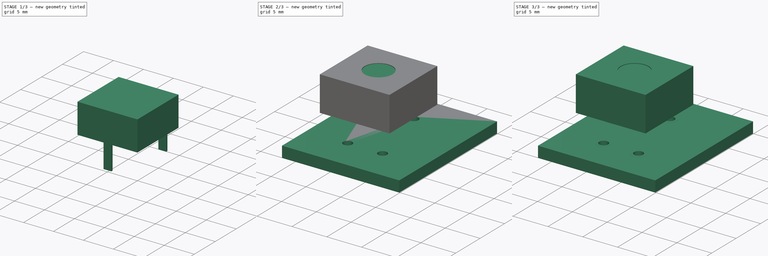
[diagram: build sequence overview — one tinted view per stage of 3, left to right]
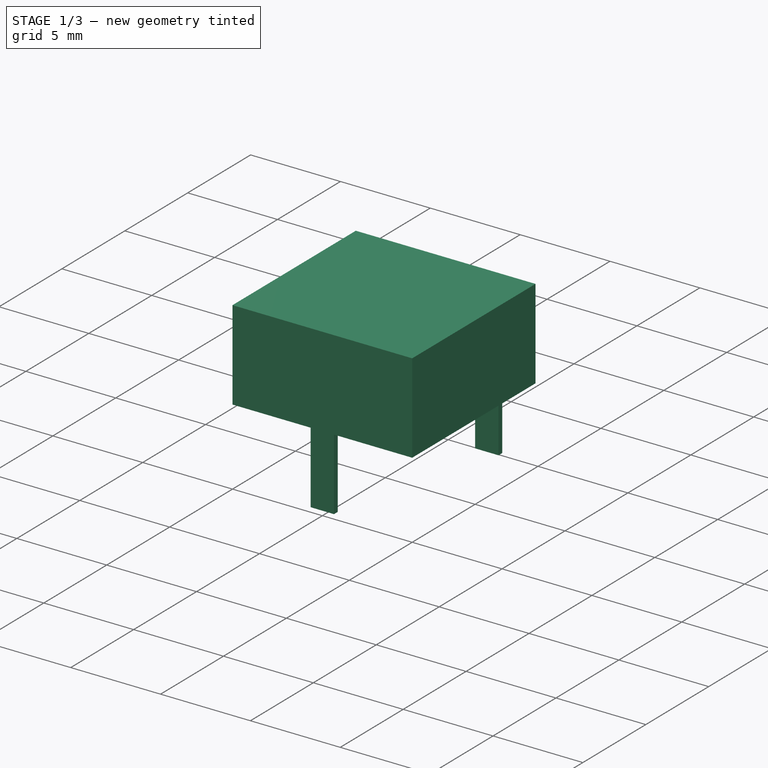
[diagram: stage 1 of 3 — iso view after this stage's code; geometry added in this stage tinted green]
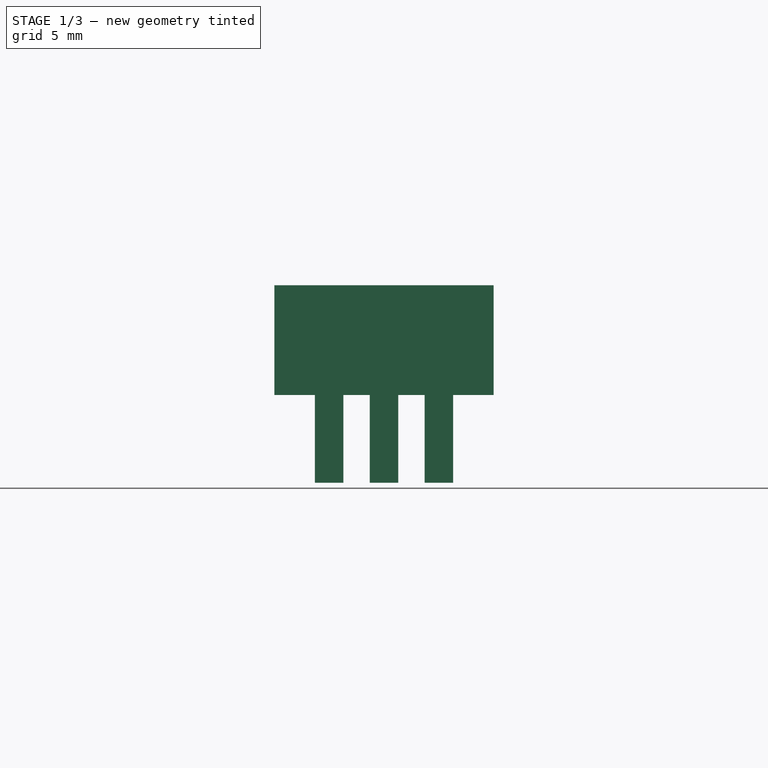
[diagram: stage 1 of 3 — front view after this stage's code; geometry added in this stage tinted green]
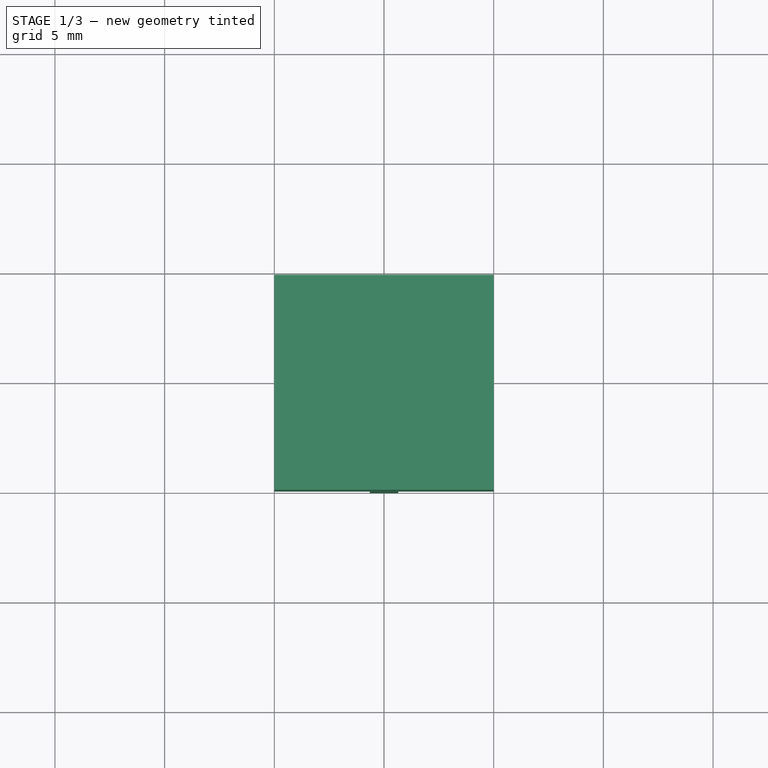
[diagram: stage 1 of 3 — top view after this stage's code; geometry added in this stage tinted green]
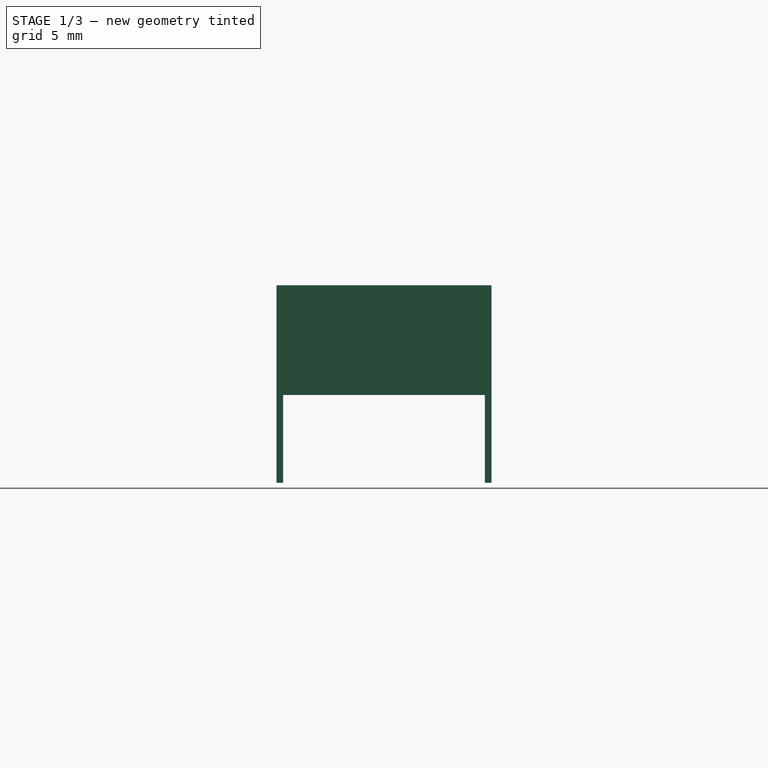
[diagram: stage 1 of 3 — right view after this stage's code; geometry added in this stage tinted green]
FCSTD DOCUMENT  (FreeCAD 0.19R22665 (Git))
Label: trimmer_acp470
License: All rights reserved
LicenseURL: http://en.wikipedia.org/wiki/All_rights_reserved
objects: Part::FeaturePython×6, Sketcher::SketchObject×4, PartDesign::Pad×2, PartDesign::Pocket×1, App::DocumentObjectGroup×1, PartDesign::Body×1, App::Part×1, Part::Feature×1
note: 18 computed .brp shape members not serialized (recipe doc carries the construction recipe); baked Part::Feature solids carry a one-line shape summary decoded from their .brp

FEATURE [Sketcher::SketchObject] Sketch
  MapMode = 5
  Support = -> [XY_Plane001]
  sketch-geometry (4):
    g0: LineSegment StartX=-10 StartY=9.8 StartZ=0 EndX=0 EndY=9.8 EndZ=0
    g1: LineSegment StartX=0 StartY=9.8 StartZ=0 EndX=0 EndY=0 EndZ=0
    g2: LineSegment StartX=0 StartY=0 StartZ=0 EndX=-10 EndY=0 EndZ=0
    g3: LineSegment StartX=-10 StartY=0 StartZ=0 EndX=-10 EndY=9.8 EndZ=0
  constraints (11):
    c: Coincident(g0,g1)
    c: Coincident(g1,g2)
    c: Coincident(g2,g3)
    c: Coincident(g3,g0)
    c: Horizontal(g0)
    c: Horizontal(g2)
    c: Vertical(g1)
    c: Vertical(g3)
    c: Coincident(g1,g-1)
    c: Distance(g0) = 10
    c: Distance(g3) = 9.8
FEATURE [PartDesign::Pad] Pad
  Direction = (1,1,1)
  Length = 5
  Length2 = 100
  Profile = -> Sketch
  Type = 0
FEATURE [Sketcher::SketchObject] Sketch001
  ExternalGeometry = -> [Pad]
  MapMode = 5
  Placement = pos=(0,0,0) rot=(1,0,0;3.14159rad)
  Support = -> [Pad]
  sketch-geometry (16):
    g0: LineSegment [constr] StartX=-10 StartY=-4.9 StartZ=0 EndX=0 EndY=-4.9 EndZ=0
    g1: LineSegment [constr] StartX=-5 StartY=0 StartZ=0 EndX=-5 EndY=-9.8 EndZ=0
    g2: LineSegment StartX=-5.65 StartY=0 StartZ=0 EndX=-4.35 EndY=0 EndZ=0
    g3: LineSegment StartX=-4.35 StartY=0 StartZ=0 EndX=-4.35 EndY=-0.3 EndZ=0
    g4: LineSegment StartX=-4.35 StartY=-0.3 StartZ=0 EndX=-5.65 EndY=-0.3 EndZ=0
    g5: LineSegment StartX=-5.65 StartY=-0.3 StartZ=0 EndX=-5.65 EndY=0 EndZ=0
    g6: LineSegment StartX=-6.85 StartY=-9.5 StartZ=0 EndX=-8.15 EndY=-9.5 EndZ=0
    g7: LineSegment StartX=-8.15 StartY=-9.5 StartZ=0 EndX=-8.15 EndY=-9.8 EndZ=0
    g8: LineSegment StartX=-8.15 StartY=-9.8 StartZ=0 EndX=-6.85 EndY=-9.8 EndZ=0
    g9: LineSegment StartX=-6.85 StartY=-9.8 StartZ=0 EndX=-6.85 EndY=-9.5 EndZ=0
    g10: LineSegment StartX=-3.15 StartY=-9.5 StartZ=0 EndX=-1.85 EndY=-9.5 EndZ=0
    g11: LineSegment StartX=-1.85 StartY=-9.5 StartZ=0 EndX=-1.85 EndY=-9.8 EndZ=0
    g12: LineSegment StartX=-1.85 StartY=-9.8 StartZ=0 EndX=-3.15 EndY=-9.8 EndZ=0
    g13: LineSegment StartX=-3.15 StartY=-9.8 StartZ=0 EndX=-3.15 EndY=-9.5 EndZ=0
    g14: LineSegment [constr] StartX=-7.5 StartY=-9.5 StartZ=0 EndX=-7.5 EndY=-9.8 EndZ=0
    g15: LineSegment [constr] StartX=-2.5 StartY=-9.5 StartZ=0 EndX=-2.5 EndY=-9.8 EndZ=0
  constraints (47):
    c: PointOnObject(g0,g-6)
    c: PointOnObject(g0,g-4)
    c: PointOnObject(g1,g-3)
    c: PointOnObject(g1,g-5)
    c: Symmetric(g-6,g-1,g1)
    c: Symmetric(g-6,g-6,g0)
    c: Coincident(g2,g3)
    c: Coincident(g3,g4)
    c: Coincident(g4,g5)
    c: Coincident(g5,g2)
    c: Horizontal(g4)
    c: Vertical(g3)
    c: Vertical(g5)
    c: PointOnObject(g2,g-3)
    c: Coincident(g6,g7)
    c: Coincident(g7,g8)
    c: Coincident(g8,g9)
    c: Coincident(g9,g6)
    c: Horizontal(g6)
    c: Horizontal(g8)
    c: Vertical(g7)
    c: Vertical(g9)
    c: PointOnObject(g7,g-5)
    c: Coincident(g10,g11)
    c: Coincident(g11,g12)
    c: Coincident(g12,g13)
    c: Coincident(g13,g10)
    c: Horizontal(g10)
    c: Horizontal(g12)
    c: Vertical(g11)
    c: Vertical(g13)
    c: PointOnObject(g11,g-5)
    c: Symmetric(g2,g2,g1)
    c: Distance(g2) = 1.3
    c: Distance(g5) = 0.3
    c: PointOnObject(g14,g6)
    c: PointOnObject(g14,g8)
    c: PointOnObject(g15,g10)
    c: PointOnObject(g15,g12)
    c: Symmetric(g8,g7,g14)
    c: Symmetric(g12,g11,g15)
    c: DistanceX(g1,g15) = 2.5
    c: DistanceX(g14,g1) = 2.5
    c: Equal(g4,g6)
    c: Equal(g6,g10)
    c: Equal(g3,g9)
    c: Equal(g9,g11)
FEATURE [PartDesign::Pad] Pad001
  BaseFeature = -> Pad
  Direction = (1,1,1)
  Length = 4
  Length2 = 100
  Profile = -> Sketch001
  Type = 0
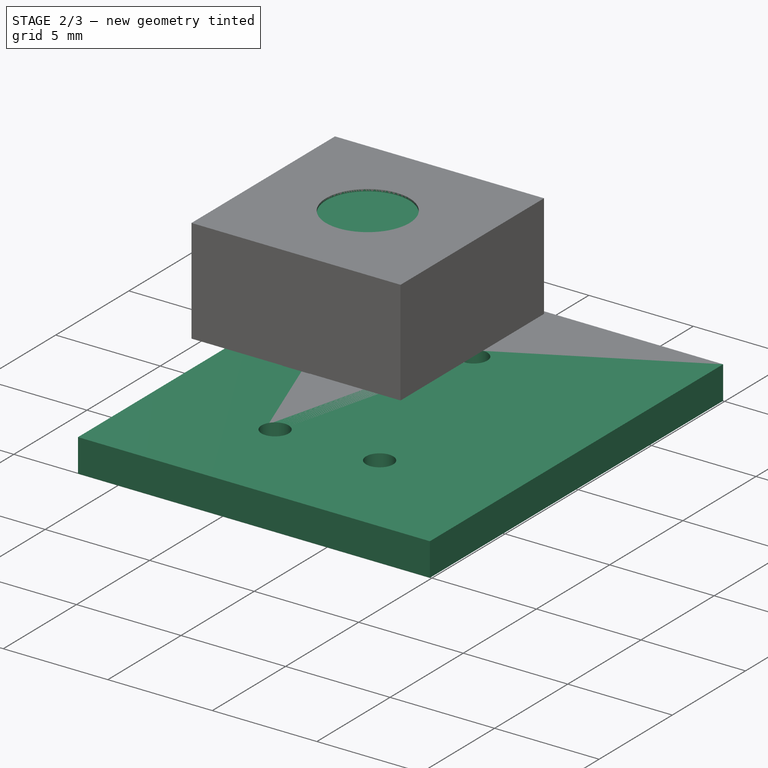
[diagram: stage 2 of 3 — iso view after this stage's code; geometry added in this stage tinted green]
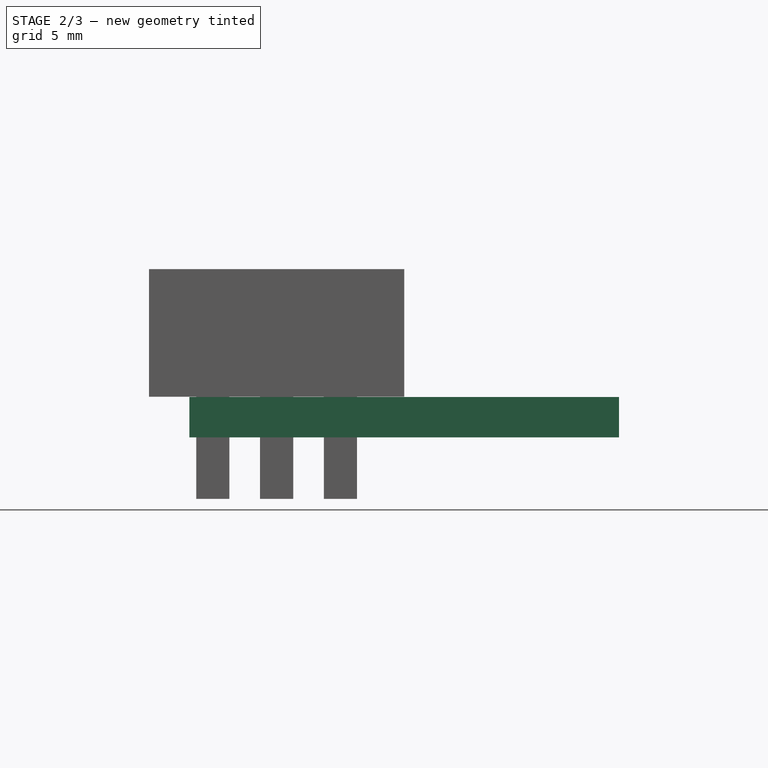
[diagram: stage 2 of 3 — front view after this stage's code; geometry added in this stage tinted green]
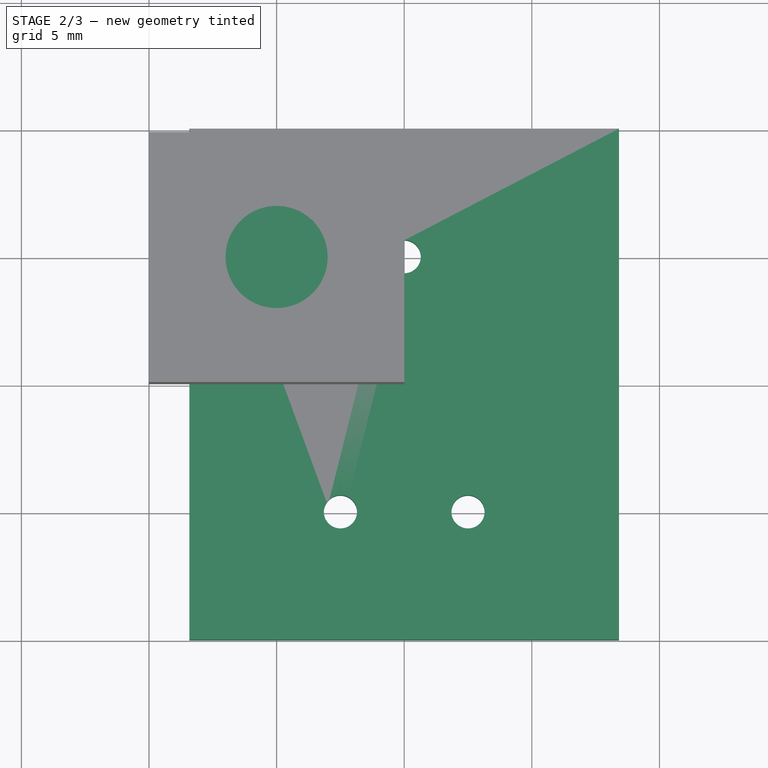
[diagram: stage 2 of 3 — top view after this stage's code; geometry added in this stage tinted green]
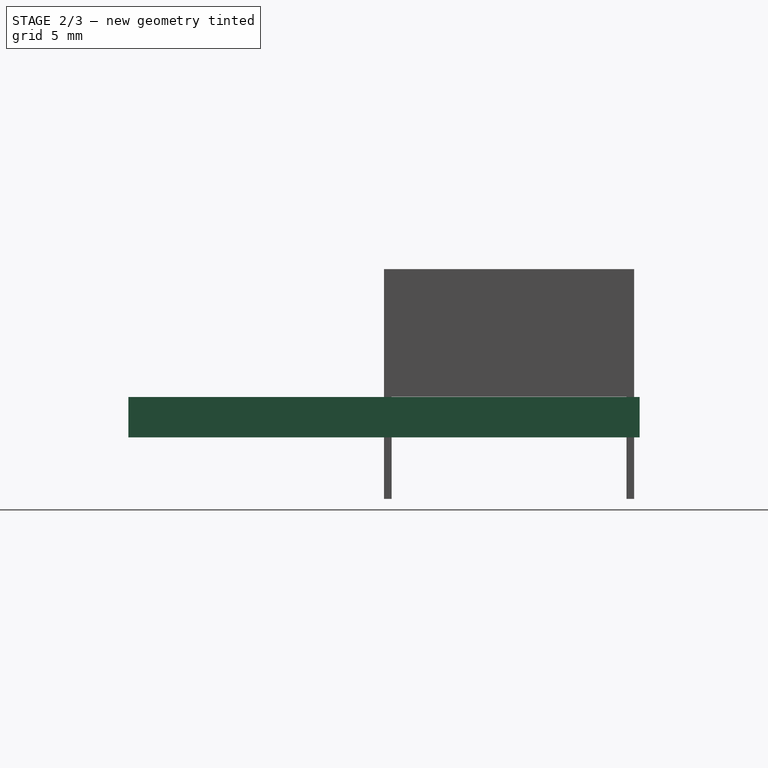
[diagram: stage 2 of 3 — right view after this stage's code; geometry added in this stage tinted green]
FEATURE [Sketcher::SketchObject] Sketch003
  ExternalGeometry = -> [Pad001]
  MapMode = 5
  Placement = pos=(0,0,5) rot=(0,0,1;0rad)
  Support = -> [Pad001]
  sketch-geometry (4):
    g0: LineSegment [constr] StartX=-5 StartY=0 StartZ=0 EndX=-5 EndY=9.8 EndZ=0
    g1: LineSegment [constr] StartX=0 StartY=4.9 StartZ=0 EndX=-10 EndY=4.9 EndZ=0
    g2: Circle CenterX=-5 CenterY=4.9 CenterZ=0 NormalX=0 NormalY=0 NormalZ=1 AngleXU=0 Radius=2
    g3: GeomPoint X=-5 Y=4.9 Z=0
  constraints (10):
    c: PointOnObject(g0,g-3)
    c: PointOnObject(g0,g-5)
    c: PointOnObject(g1,g-4)
    c: PointOnObject(g1,g-6)
    c: Symmetric(g-5,g-6,g0)
    c: Symmetric(g-6,g-6,g1)
    c: PointOnObject(g2,g0)
    c: Radius(g2) = 2
    c: PointOnObject(g3,g1)
    c: Coincident(g2,g3)
FEATURE [PartDesign::Pocket] Pocket
  BaseFeature = -> Pad001
  Length = 0.1
  Length2 = 100
  Profile = -> Sketch003
  Type = 0
FEATURE [Part::FeaturePython] THPs  label="PTHs"  # a2plus imported part (geometry in sourceFile) (typed FeaturePython)
  fixedPosition = true
FEATURE [Part::FeaturePython] newPCB  label="Pcb"  # a2plus imported part (geometry in sourceFile) (typed FeaturePython)
  fixedPosition = true
FEATURE [App::DocumentObjectGroup] Trimmer_ACP_470_fp
  Group = -> [FCrtYd_lines,Filk_lines,TopPads,BotPads,THPs,newPCB]
FEATURE [Sketcher::SketchObject] Sketch004
  ExternalGeometry = -> [Pocket]
  MapMode = 5
  Placement = pos=(0,0,4.9) rot=(0,0,1;0rad)
  Support = -> [Pocket]
  sketch-geometry (14):
    g0: LineSegment StartX=-6.25 StartY=4.65 StartZ=0 EndX=-6.25 EndY=5.15 EndZ=0
    g1: LineSegment StartX=-6.25 StartY=5.15 StartZ=0 EndX=-5.25 EndY=5.15 EndZ=0
    g2: LineSegment StartX=-5.25 StartY=5.15 StartZ=0 EndX=-5.25 EndY=6.15 EndZ=0
    g3: LineSegment StartX=-5.25 StartY=6.15 StartZ=0 EndX=-4.75 EndY=6.15 EndZ=0
    g4: LineSegment StartX=-4.75 StartY=6.15 StartZ=0 EndX=-4.75 EndY=5.15 EndZ=0
    g5: LineSegment StartX=-4.75 StartY=5.15 StartZ=0 EndX=-3.75 EndY=5.15 EndZ=0
    g6: LineSegment StartX=-3.75 StartY=5.15 StartZ=0 EndX=-3.75 EndY=4.65 EndZ=0
    g7: LineSegment StartX=-3.75 StartY=4.65 StartZ=0 EndX=-4.75 EndY=4.65 EndZ=0
    g8: LineSegment StartX=-4.75 StartY=4.65 StartZ=0 EndX=-4.75 EndY=3.65 EndZ=0
    g9: LineSegment StartX=-4.75 StartY=3.65 StartZ=0 EndX=-5.25 EndY=3.65 EndZ=0
    g10: LineSegment StartX=-5.25 StartY=3.65 StartZ=0 EndX=-5.25 EndY=4.65 EndZ=0
    g11: LineSegment StartX=-5.25 StartY=4.65 StartZ=0 EndX=-6.25 EndY=4.65 EndZ=0
    g12: LineSegment [constr] StartX=-5.25 StartY=5.15 StartZ=0 EndX=-4.75 EndY=4.65 EndZ=0
    g13: LineSegment [constr] StartX=-5.25 StartY=4.65 StartZ=0 EndX=-4.75 EndY=5.15 EndZ=0
  constraints (39):
    c: Vertical(g0)
    c: Coincident(g0,g1)
    c: Horizontal(g1)
    c: Coincident(g1,g2)
    c: Vertical(g2)
    c: Coincident(g2,g3)
    c: Horizontal(g3)
    c: Coincident(g3,g4)
    c: Coincident(g4,g5)
    c: Coincident(g5,g6)
    c: Vertical(g6)
    c: Coincident(g6,g7)
    c: Coincident(g7,g8)
    c: Vertical(g8)
    c: Coincident(g8,g9)
    c: Coincident(g9,g10)
    c: Coincident(g10,g11)
    c: Coincident(g11,g0)
    c: Equal(g2,g4)
    c: Equal(g10,g8)
    c: Parallel(g4,g2)
    c: Parallel(g5,g7)
    c: Horizontal(g5)
    c: Equal(g10,g2)
    c: Equal(g5,g1)
    c: Equal(g6,g0)
    c: Equal(g3,g9)
    c: Equal(g9,g6)
    c: Equal(g1,g11)
    c: Equal(g1,g5)
    c: Coincident(g12,g1)
    c: Coincident(g12,g7)
    c: Coincident(g13,g10)
    c: Coincident(g13,g4)
    c: Symmetric(g1,g7,g-3)
    c: Symmetric(g4,g10,g-3)
    c: Distance(g3) = 0.5
    c: Distance(g5) = 1
    c: Equal(g4,g5)
FEATURE [PartDesign::Body] PocketBody
  Group = -> [Sketch,Pad,Sketch001,Pad001,Sketch003,Pocket]
  Origin = -> Origin001
FEATURE [App::Part] Part
  Group = -> [PocketBody]
  Origin = -> Origin
FEATURE [Part::Feature] Shape  label="ACP470"
  shape: bbox 10 x 9.8 x 9 mm, 36 faces (baked)
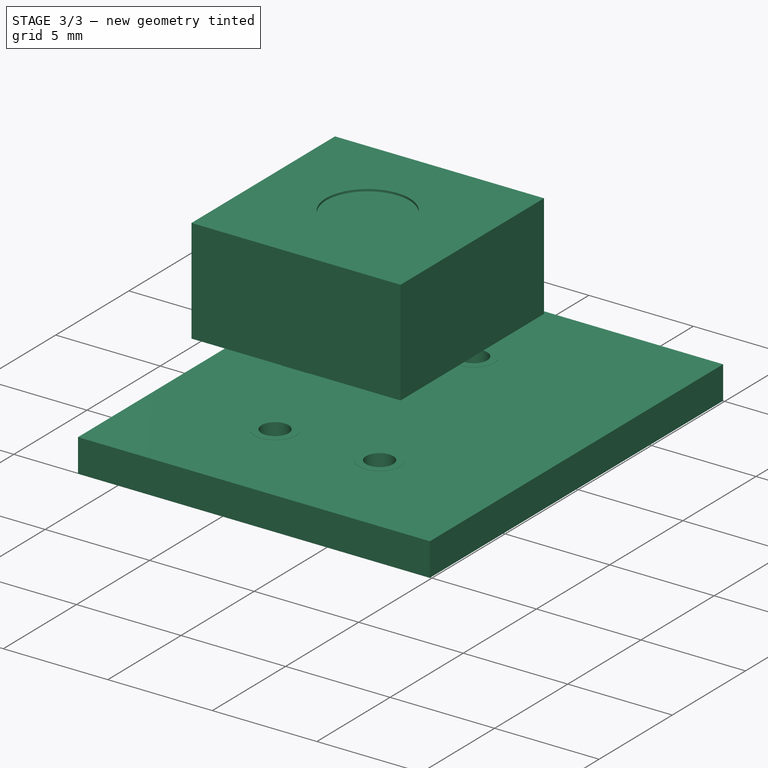
[diagram: stage 3 of 3 — iso view after this stage's code; geometry added in this stage tinted green]
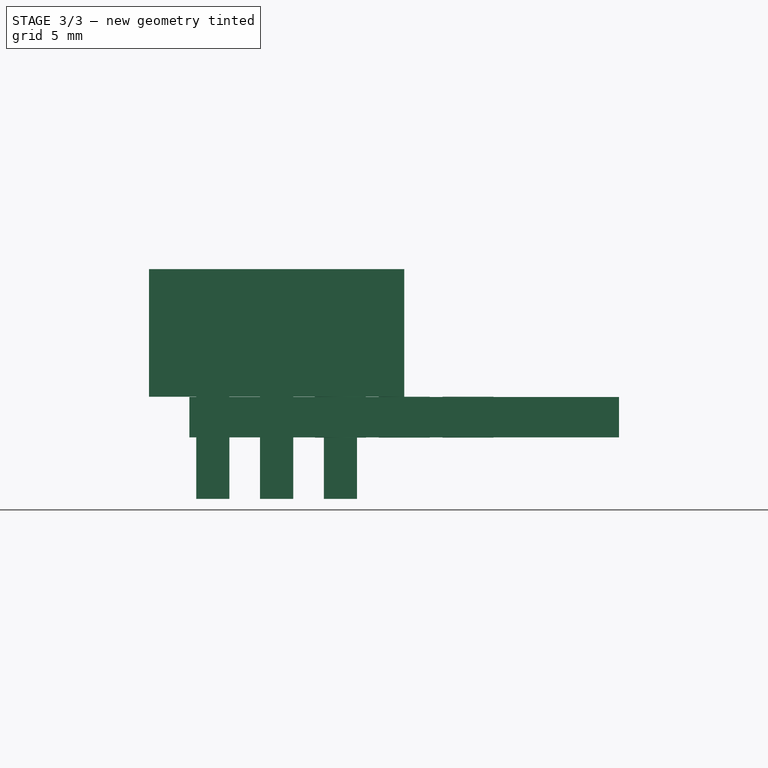
[diagram: stage 3 of 3 — front view after this stage's code; geometry added in this stage tinted green]
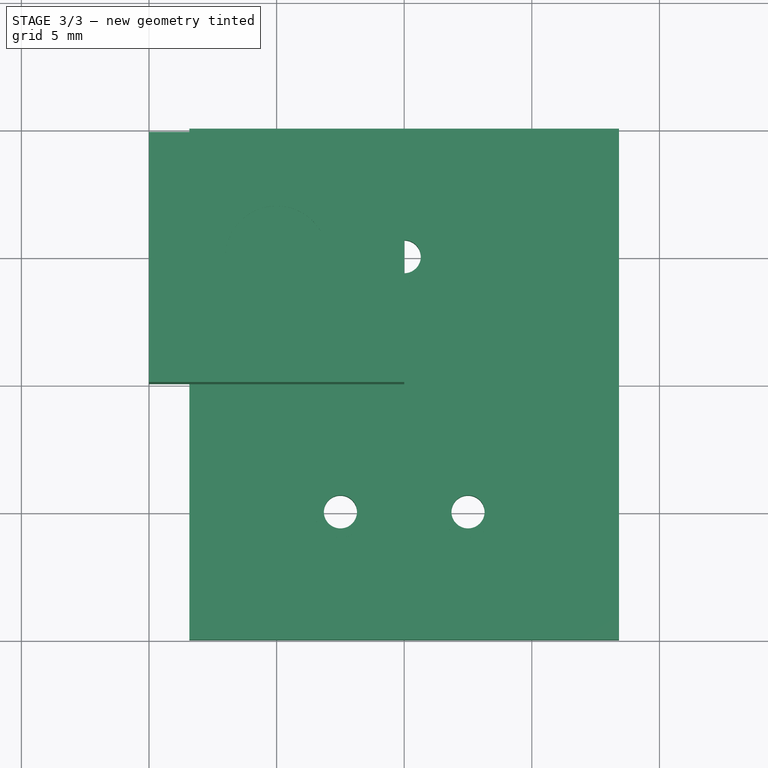
[diagram: stage 3 of 3 — top view after this stage's code; geometry added in this stage tinted green]
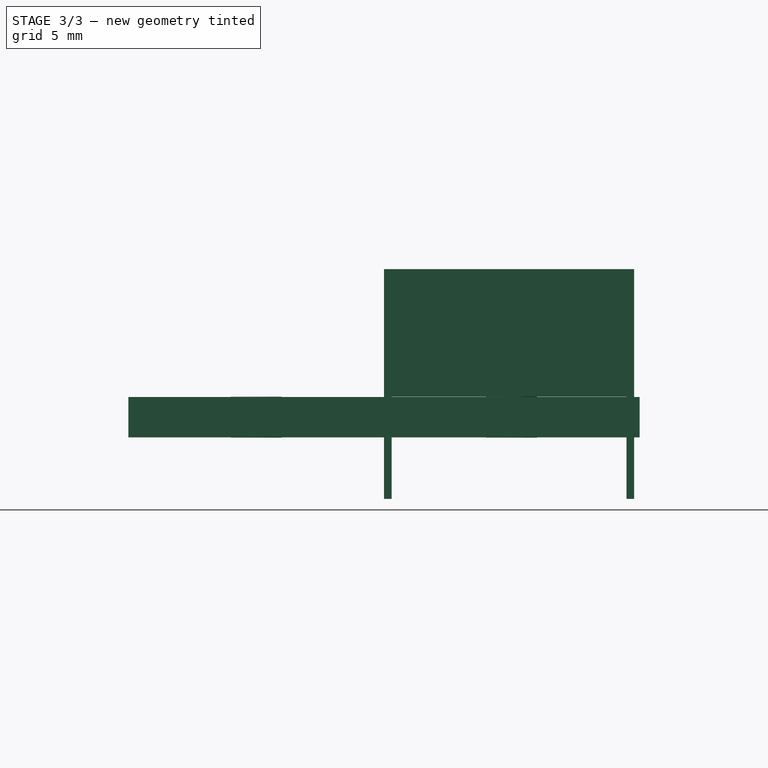
[diagram: stage 3 of 3 — right view after this stage's code; geometry added in this stage tinted green]
FEATURE [Part::FeaturePython] FCrtYd_lines  label="FCrtYd"  # a2plus imported part (geometry in sourceFile) (typed FeaturePython)
  fixedPosition = true
FEATURE [Part::FeaturePython] Filk_lines  label="FrontSilk"  # a2plus imported part (geometry in sourceFile) (typed FeaturePython)
  fixedPosition = true
FEATURE [Part::FeaturePython] TopPads  # a2plus imported part (geometry in sourceFile) (typed FeaturePython)
  fixedPosition = true
FEATURE [Part::FeaturePython] BotPads  # a2plus imported part (geometry in sourceFile) (typed FeaturePython)
  fixedPosition = true
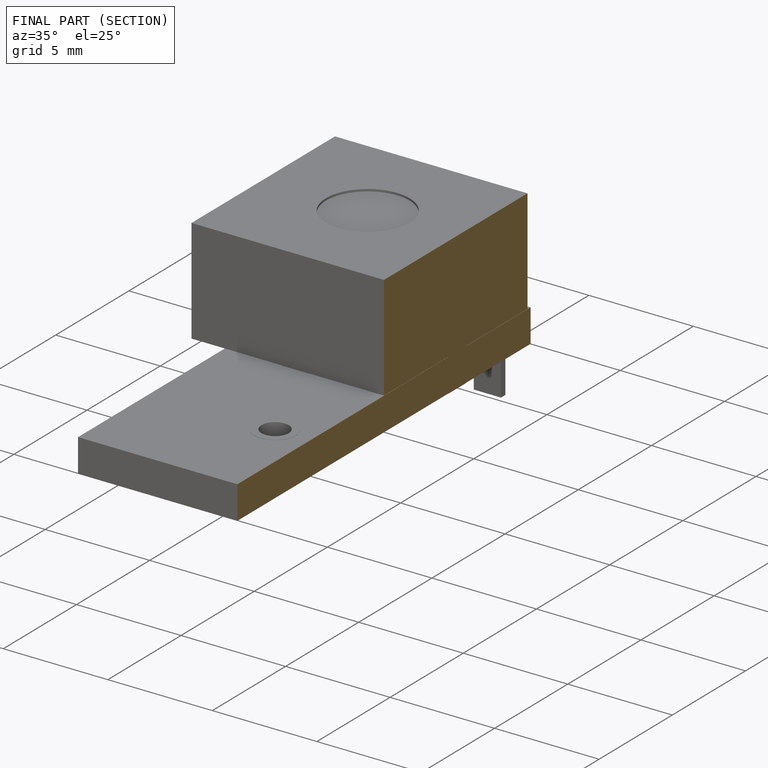
[diagram: finished part — half-section view (interior)]
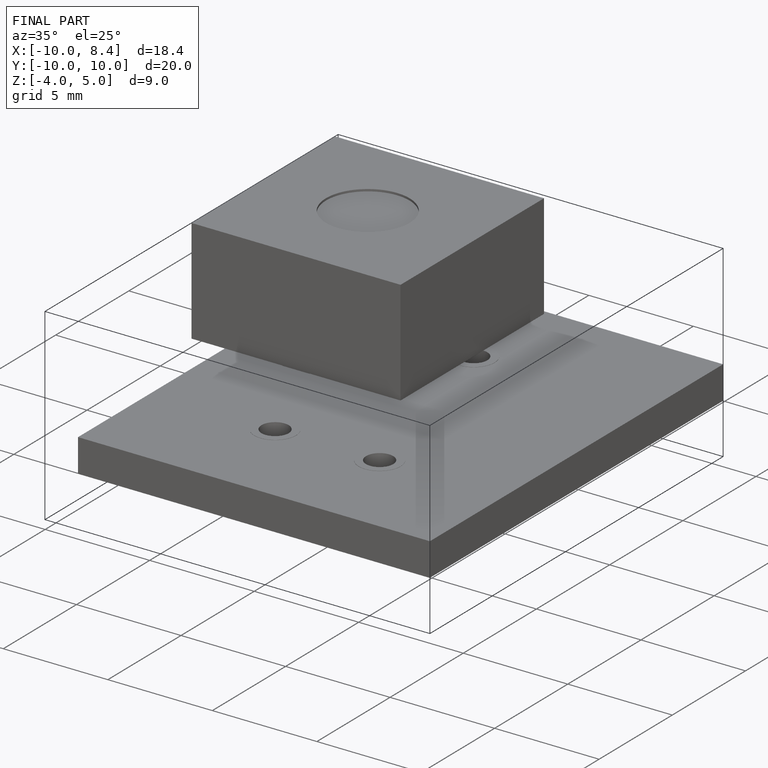
[diagram: finished part — iso view with bounding-box wireframe]
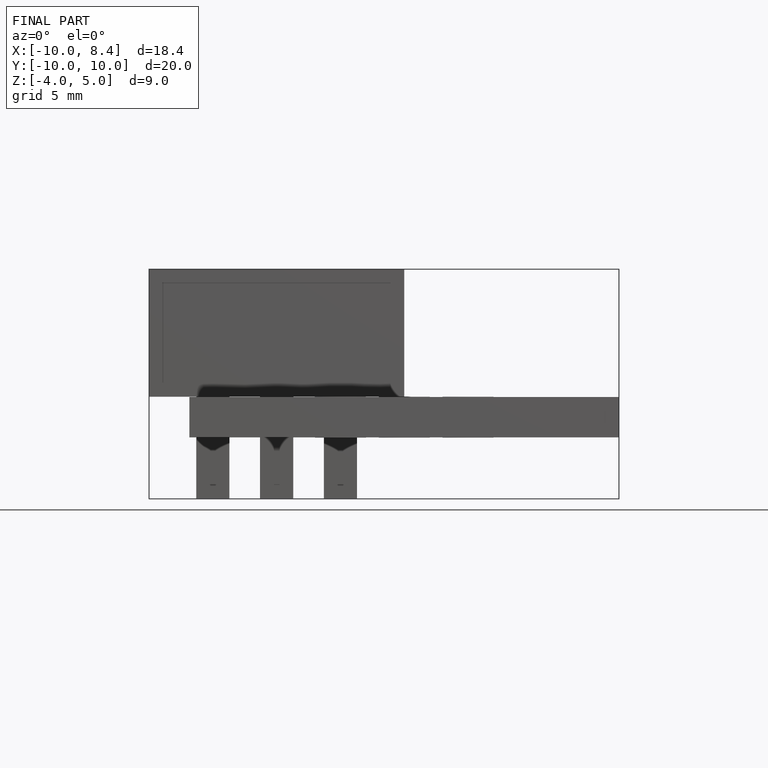
[diagram: finished part — front view with bounding-box wireframe]
